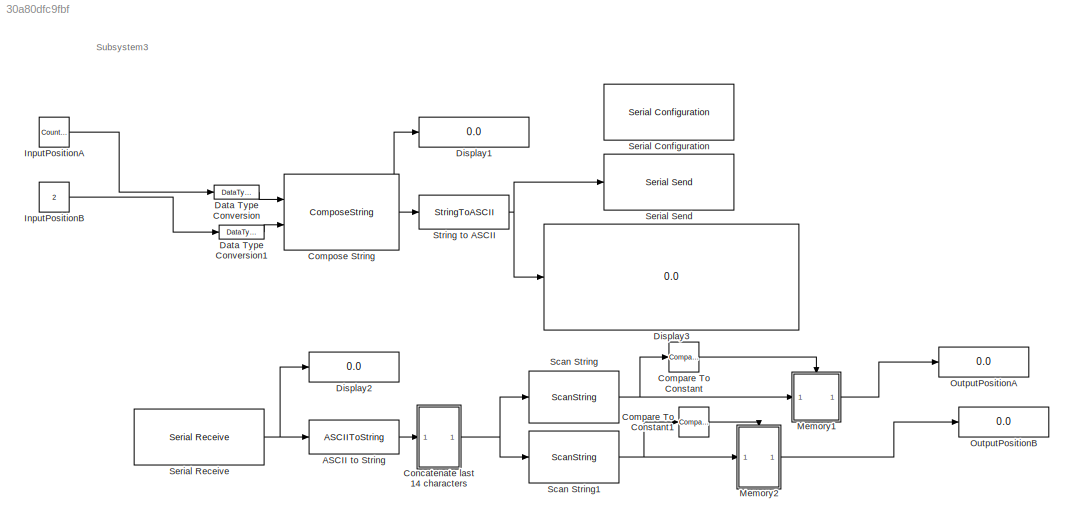
MODEL slx_30a80dfc9fbf
KIND model
CONFIG AbsTol = auto
CONFIG EnableMultiTasking = off
CONFIG FixedStep = auto
CONFIG MaxStep = auto
CONFIG MinStep = auto
CONFIG RelTol = 1e-3
CONFIG SampleTimeConstraint = Unconstrained
CONFIG SolverName = VariableStepAuto
CONFIG StartTime = 0.0
CONFIG StopTime = inf
BLOCK [ASCIIToString] ASCII to String
BLOCK [Reference] Compare To Constant  REF=simulink/Logic and Bit
Operations/Compare
To Constant
  Ports = [1, 1]
  SourceBlock = simulink/Logic and Bit\nOperations/Compare\nTo Constant
  SourceProductBaseCode = SL
  SourceType = Compare To Constant
BLOCK [Reference] Compare To Constant1  REF=simulink/Logic and Bit
Operations/Compare
To Constant
  Ports = [1, 1]
  SourceBlock = simulink/Logic and Bit\nOperations/Compare\nTo Constant
  SourceProductBaseCode = SL
  SourceType = Compare To Constant
BLOCK [ComposeString] Compose String
  Format = "A%06.3f\nB%06.3f"
  Ports = [2, 1]
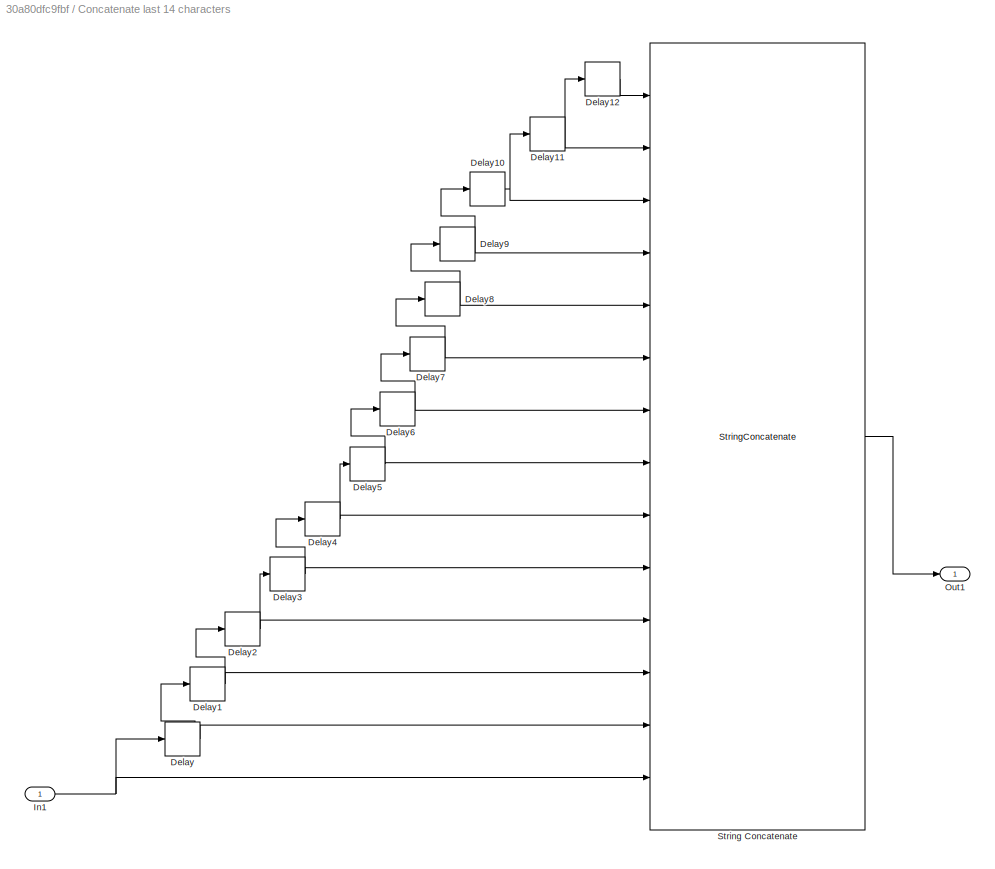
BLOCK [SubSystem] Concatenate last 14 characters
  Ports = [1, 1]
  RequestExecContextInheritance = off
BLOCK [Delay] Concatenate last 14 characters/Delay
  DelayLength = 1
  InputPortMap = u0
  Ports = [1, 1]
BLOCK [Delay] Concatenate last 14 characters/Delay1
  DelayLength = 1
  InputPortMap = u0
  Ports = [1, 1]
BLOCK [Delay] Concatenate last 14 characters/Delay10
  DelayLength = 1
  InputPortMap = u0
  Ports = [1, 1]
BLOCK [Delay] Concatenate last 14 characters/Delay11
  DelayLength = 1
  InputPortMap = u0
  Ports = [1, 1]
BLOCK [Delay] Concatenate last 14 characters/Delay12
  DelayLength = 1
  InputPortMap = u0
  Ports = [1, 1]
BLOCK [Delay] Concatenate last 14 characters/Delay2
  DelayLength = 1
  InputPortMap = u0
  Ports = [1, 1]
BLOCK [Delay] Concatenate last 14 characters/Delay3
  DelayLength = 1
  InputPortMap = u0
  Ports = [1, 1]
BLOCK [Delay] Concatenate last 14 characters/Delay4
  DelayLength = 1
  InputPortMap = u0
  Ports = [1, 1]
BLOCK [Delay] Concatenate last 14 characters/Delay5
  DelayLength = 1
  InputPortMap = u0
  Ports = [1, 1]
BLOCK [Delay] Concatenate last 14 characters/Delay6
  DelayLength = 1
  InputPortMap = u0
  Ports = [1, 1]
BLOCK [Delay] Concatenate last 14 characters/Delay7
  DelayLength = 1
  InputPortMap = u0
  Ports = [1, 1]
BLOCK [Delay] Concatenate last 14 characters/Delay8
  DelayLength = 1
  InputPortMap = u0
  Ports = [1, 1]
BLOCK [Delay] Concatenate last 14 characters/Delay9
  DelayLength = 1
  InputPortMap = u0
  Ports = [1, 1]
BLOCK [Inport] Concatenate last 14 characters/In1
BLOCK [Outport] Concatenate last 14 characters/Out1
BLOCK [StringConcatenate] Concatenate last 14 characters/String Concatenate
  Inputs = 14
  Ports = [14, 1]
BLOCK [DataTypeConversion] Data Type Conversion
  LockScale = on
  OutDataTypeStr = single
  RndMeth = Floor
  SaturateOnIntegerOverflow = off
BLOCK [DataTypeConversion] Data Type Conversion1
  LockScale = on
  OutDataTypeStr = single
  RndMeth = Floor
  SaturateOnIntegerOverflow = off
BLOCK [Display] Display1
  Decimation = 1
  Ports = [1]
BLOCK [Display] Display2
  Decimation = 1
  Ports = [1]
BLOCK [Display] Display3
  Decimation = 1
  Ports = [1]
BLOCK [Reference] InputPositionA  REF=simulink/Sources/Counter
Limited
  Ports = [0, 1]
  SourceBlock = simulink/Sources/Counter\nLimited
  SourceProductBaseCode = SL
  SourceType = Counter Limited
BLOCK [Constant] InputPositionB
  OutDataTypeStr = single
  Value = 2
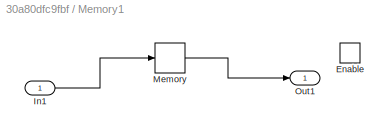
BLOCK [SubSystem] Memory1
  Ports = [1, 1, 1]
  RequestExecContextInheritance = off
BLOCK [EnablePort] Memory1/Enable
  Ports = []
BLOCK [Inport] Memory1/In1
BLOCK [Memory] Memory1/Memory
BLOCK [Outport] Memory1/Out1
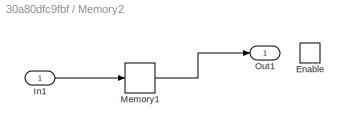
BLOCK [SubSystem] Memory2
  Ports = [1, 1, 1]
  RequestExecContextInheritance = off
BLOCK [EnablePort] Memory2/Enable
  Ports = []
BLOCK [Inport] Memory2/In1
BLOCK [Memory] Memory2/Memory1
BLOCK [Outport] Memory2/Out1
BLOCK [Display] OutputPositionA
  Decimation = 1
  Ports = [1]
BLOCK [Display] OutputPositionB
  Decimation = 1
  Ports = [1]
BLOCK [ScanString] Scan String
  Format = "A%f"
  Ports = [1, 1]
BLOCK [ScanString] Scan String1
  Format = "B%f"
  Ports = [1, 1]
BLOCK [Reference] Serial Configuration  REF=instrumentseriallib/Serial Configuration
  Ports = []
  Priority = -200000
  SourceBlock = instrumentseriallib/Serial Configuration
  SourceProductBaseCode = OT,IC,MT
  SourceType = system.SerialConfiguration
BLOCK [Reference] Serial Receive  REF=instrumentseriallib/Serial Receive
  Ports = [0, 1]
  Priority = 1
  SourceBlock = instrumentseriallib/Serial Receive
  SourceProductBaseCode = OT,IC,MT
  SourceType = system.SerialReceive
BLOCK [Reference] Serial Send  REF=instrumentseriallib/Serial Send
  Ports = [1]
  Priority = 1
  SourceBlock = instrumentseriallib/Serial Send
  SourceProductBaseCode = OT,IC,MT
  SourceType = system.SerialSend
BLOCK [StringToASCII] String to ASCII
  OutputVectorSize = 15
ANNOTATION (root): Subsystem3
LINE ASCII to String:1 -> Concatenate last 14 characters:1
LINE Compare To Constant1:1 -> Memory2:enable
LINE Compare To Constant:1 -> Memory1:enable
NET Compose String:1 -> Display1:1, String to ASCII:1
NET Concatenate last 14 characters/Delay10:1 -> Concatenate last 14 characters/Delay11:1, Concatenate last 14 characters/String Concatenate:3
NET Concatenate last 14 characters/Delay11:1 -> Concatenate last 14 characters/Delay12:1, Concatenate last 14 characters/String Concatenate:2
LINE Concatenate last 14 characters/Delay12:1 -> Concatenate last 14 characters/String Concatenate:1
NET Concatenate last 14 characters/Delay1:1 -> Concatenate last 14 characters/Delay2:1, Concatenate last 14 characters/String Concatenate:12
NET Concatenate last 14 characters/Delay2:1 -> Concatenate last 14 characters/Delay3:1, Concatenate last 14 characters/String Concatenate:11
NET Concatenate last 14 characters/Delay3:1 -> Concatenate last 14 characters/Delay4:1, Concatenate last 14 characters/String Concatenate:10
NET Concatenate last 14 characters/Delay4:1 -> Concatenate last 14 characters/Delay5:1, Concatenate last 14 characters/String Concatenate:9
NET Concatenate last 14 characters/Delay5:1 -> Concatenate last 14 characters/Delay6:1, Concatenate last 14 characters/String Concatenate:8
NET Concatenate last 14 characters/Delay6:1 -> Concatenate last 14 characters/Delay7:1, Concatenate last 14 characters/String Concatenate:7
NET Concatenate last 14 characters/Delay7:1 -> Concatenate last 14 characters/Delay8:1, Concatenate last 14 characters/String Concatenate:6
NET Concatenate last 14 characters/Delay8:1 -> Concatenate last 14 characters/Delay9:1, Concatenate last 14 characters/String Concatenate:5
NET Concatenate last 14 characters/Delay9:1 -> Concatenate last 14 characters/Delay10:1, Concatenate last 14 characters/String Concatenate:4
NET Concatenate last 14 characters/Delay:1 -> Concatenate last 14 characters/Delay1:1, Concatenate last 14 characters/String Concatenate:13
NET Concatenate last 14 characters/In1:1 -> Concatenate last 14 characters/Delay:1, Concatenate last 14 characters/String Concatenate:14
LINE Concatenate last 14 characters/String Concatenate:1 -> Concatenate last 14 characters/Out1:1
NET Concatenate last 14 characters:1 -> Scan String1:1, Scan String:1
LINE Data Type Conversion1:1 -> Compose String:2
LINE Data Type Conversion:1 -> Compose String:1
LINE InputPositionA:1 -> Data Type Conversion:1
LINE InputPositionB:1 -> Data Type Conversion1:1
LINE Memory1/In1:1 -> Memory1/Memory:1
LINE Memory1/Memory:1 -> Memory1/Out1:1
LINE Memory1:1 -> OutputPositionA:1
LINE Memory2/In1:1 -> Memory2/Memory1:1
LINE Memory2/Memory1:1 -> Memory2/Out1:1
LINE Memory2:1 -> OutputPositionB:1
NET Scan String1:1 -> Compare To Constant1:1, Memory2:1
NET Scan String:1 -> Compare To Constant:1, Memory1:1
NET Serial Receive:1 -> ASCII to String:1, Display2:1
NET String to ASCII:1 -> Display3:1, Serial Send:1
note: NET lines group one-source signal fan-out (src -> all destinations, sorted); 1:1 wires keep LINE
